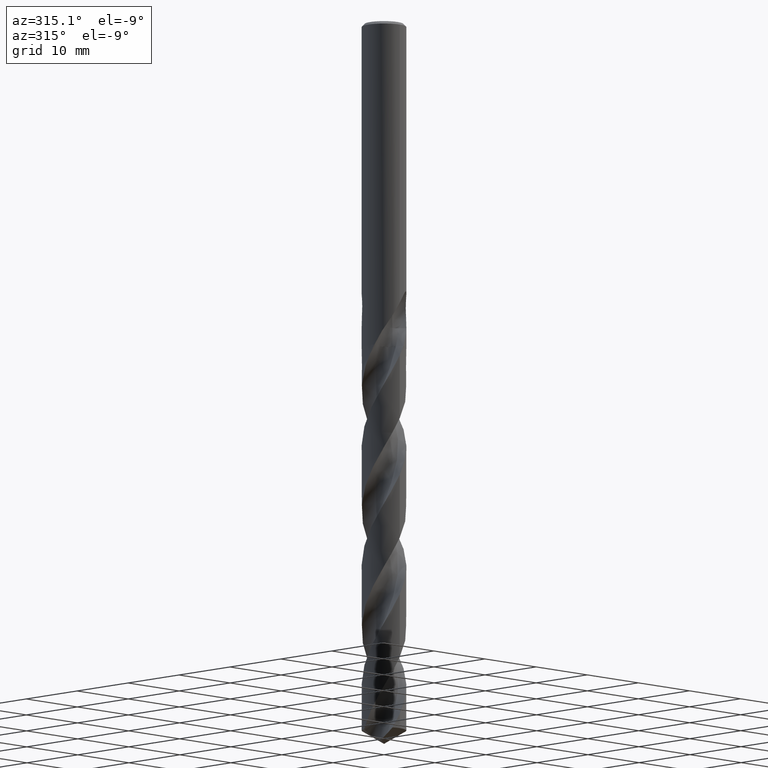
[diagram: clean part render]
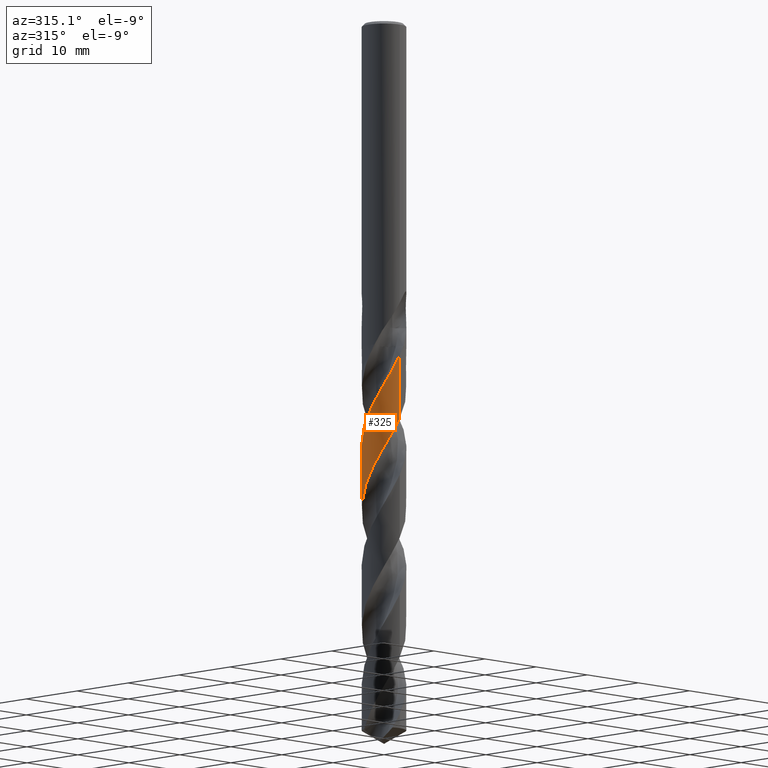
[diagram: same view with one face highlighted and labeled with its STEP entity id]
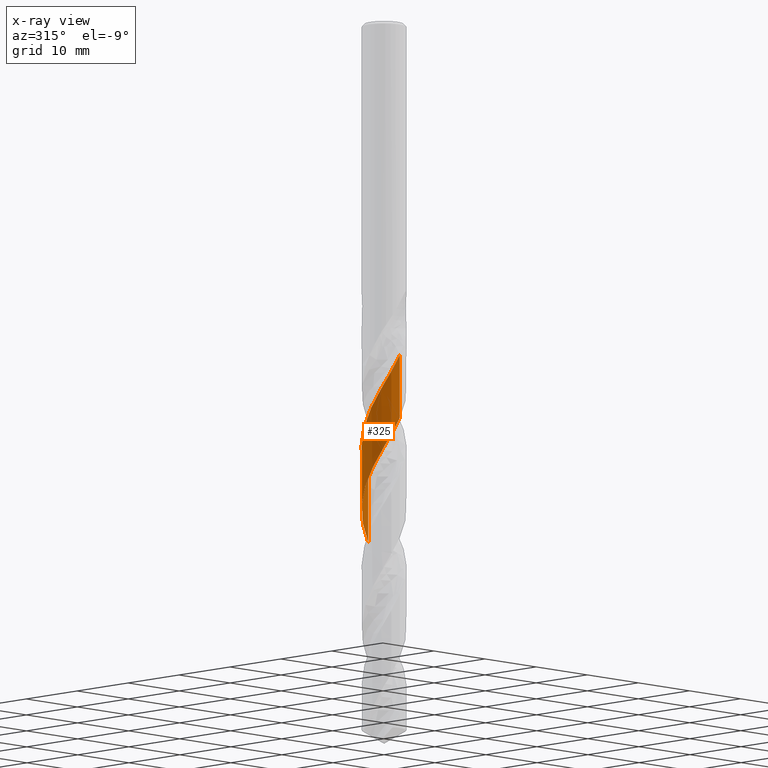
[diagram: x-ray of the same camera — body ghosted, the highlighted face saturated]
A machine part, auxiliary view. The second image highlights one B-rep face of the part: STEP entity #325.
The next image is the same camera in x-ray: the body ghosted, the highlighted face saturated — about 0% of this face is hidden behind the body in this view.
In plain terms, the highlighted conical surface has half-angle 0 deg.
Its self-contained STEP definition (entity closure, byte-faithful):
#301=VERTEX_POINT('',#840);
#325=ADVANCED_FACE('',(#865),#866,.T.);
#343=EDGE_CURVE('',#395,#301,#887,.T.);
#395=VERTEX_POINT('',#941);
#503=VERTEX_POINT('',#1060);
#595=EDGE_CURVE('',#641,#503,#1160,.T.);
#641=VERTEX_POINT('',#1208);
#697=EDGE_CURVE('',#301,#641,#1269,.T.);
#811=EDGE_CURVE('',#503,#395,#1398,.T.);
#840=CARTESIAN_POINT('',(2.18823352453006E-015,-3.09990260791539,-46.8014241515095));
#865=FACE_OUTER_BOUND('',#1629,.T.);
#866=CONICAL_SURFACE('',#1630,3.09995,1.86090369818389E-006);
#887=LINE('',#1656,#1657);
#941=CARTESIAN_POINT('',(-7.96010246756979E-011,-3.09991904153534,-55.6324130801995));
#1060=CARTESIAN_POINT('',(1.20418015023498E-012,3.09995022492629,-72.3895354275451));
#1160=LINE('',#8150,#8151);
#1208=CARTESIAN_POINT('',(1.45471474958679E-013,3.09993379112987,-63.5584516698443));
#1269=B_SPLINE_CURVE_WITH_KNOTS('',3,(#10013,#10014,#10015,#10016,#10017,#10018,#10019,#10020,#10021,#10022,#10023,#10024,#10025,#10026,#10027,#10028,#10029,#10030,#10031,#10032,#10033,#10034,#10035,#10036,#10037,#10038,#10039,#10040,#10041,#10042,#10043,#10044,#10045,#10046,#10047,#10048,#10049,#10050,#10051,#10052,#10053,#10054,#10055,#10056,#10057,#10058,#10059,#10060,#10061,#10062,#10063,#10064,#10065,#10066,#10067,#10068,#10069,#10070,#10071,#10072,#10073,#10074,#10075,#10076,#10077,#10078,#10079,#10080,#10081,#10082,#10083,#10084,#10085,#10086,#10087,#10088,#10089,#10090,#10091,#10092,#10093,#10094,#10095,#10096,#10097,#10098,#10099,#10100,#10101,#10102,#10103,#10104,#10105,#10106,#10107,#10108,#10109,#10110,#10111,#10112,#10113,#10114,#10115,#10116,#10117,#10118,#10119,#10120,#10121,#10122,#10123,#10124,#10125,#10126,#10127,#10128,#10129,#10130,#10131,#10132,#10133,#10134),.UNSPECIFIED.,.F.,.F.,(4,2,2,2,2,2,2,2,2,2,2,2,2,2,2,2,2,2,2,2,2,2,2,2,2,2,2,2,2,2,2,2,2,2,2,2,2,2,2,2,2,2,2,2,2,2,2,2,2,2,2,2,2,2,2,2,2,2,2,2,4),(0.0,0.0605061321969254,0.658632603859869,1.7165403872046,3.02314003703739,3.33391074773909,4.35970024156893,4.95810904975374,5.58117729165477,6.64409013231934,7.8317785002371,9.29642296022307,9.87114301084776,11.1829410812051,12.4301598485934,13.6072247723315,13.8728121102026,14.8724325155231,15.4707879178772,16.1576805124347,17.3988135674862,18.2965223523508,19.5929494553402,20.3723489543157,21.608564133085,22.5159617127965,23.8125082345733,24.5908156702885,25.8330865373858,26.7262648961595,28.0191934538834,28.8034085439717,30.0389742709571,30.9462933393461,32.2442978634304,33.0188972814915,34.2598055234934,35.1546499330183,36.4479539662881,37.2299686728054,38.4634862518858,39.3744175677104,40.6764874240887,41.923207434947,43.0978955312202,43.3658312077751,45.3250389365652,45.3858932919079,47.1858128806847,47.7892769196204,49.0708937670906,49.8729192477484,51.1205937560502,51.9950736679236,53.271196902422,54.0811712255781,55.3258636215247,56.165226719664,57.2579416131882,58.4720274865467,62.1508668872451),.UNSPECIFIED.);
#1398=B_SPLINE_CURVE_WITH_KNOTS('',3,(#14642,#14643,#14644,#14645,#14646,#14647,#14648,#14649,#14650,#14651,#14652,#14653,#14654,#14655,#14656,#14657,#14658,#14659,#14660,#14661,#14662,#14663,#14664,#14665,#14666,#14667,#14668,#14669,#14670,#14671,#14672,#14673,#14674,#14675,#14676,#14677,#14678,#14679,#14680,#14681,#14682,#14683,#14684,#14685,#14686,#14687,#14688,#14689,#14690,#14691,#14692,#14693,#14694,#14695,#14696,#14697,#14698,#14699,#14700,#14701,#14702,#14703,#14704,#14705,#14706,#14707,#14708,#14709,#14710,#14711,#14712,#14713,#14714,#14715,#14716,#14717,#14718,#14719,#14720,#14721,#14722,#14723,#14724,#14725,#14726,#14727,#14728,#14729,#14730,#14731,#14732,#14733,#14734,#14735,#14736,#14737,#14738,#14739,#14740,#14741,#14742,#14743,#14744,#14745,#14746,#14747,#14748,#14749,#14750,#14751,#14752,#14753,#14754,#14755,#14756,#14757,#14758,#14759,#14760,#14761,#14762,#14763,#14764,#14765,#14766,#14767,#14768,#14769,#14770,#14771,#14772,#14773,#14774,#14775,#14776,#14777,#14778,#14779,#14780,#14781,#14782,#14783,#14784,#14785,#14786,#14787,#14788,#14789,#14790,#14791),.UNSPECIFIED.,.F.,.F.,(4,2,2,2,2,2,2,2,2,2,2,2,2,2,2,2,2,2,2,2,2,2,2,2,2,2,2,2,2,2,2,2,2,2,2,2,2,2,2,2,2,2,2,2,2,2,2,2,2,2,2,2,2,2,2,2,2,2,2,2,2,2,2,2,2,2,2,2,2,2,2,2,2,2,4),(0.0,1.0922048420687,1.6194048425752,2.65957104861993,3.84132351191628,4.34111644142919,5.5130230471828,7.2743113501171,7.84533558982667,8.63370818338539,9.75774265055029,10.2861729084461,10.7367413042651,11.8650796348125,12.3938326250602,12.8501452237634,14.032081949263,15.0868207315678,16.0089182991928,16.5390228800443,17.0448249982817,18.2331339865714,18.7637505750359,19.2203083986212,20.4112913291607,21.4694950024797,22.4816383811072,23.0131621823809,23.4724121584219,24.6680985959759,25.7282069568439,27.3545173248275,27.7139067470945,28.8318151574949,29.3647308724342,29.8506052302851,30.9802468992663,32.8076650691336,33.411339997975,34.5069264346493,35.4832529909287,36.5158522128277,37.5164005776861,38.5036718222717,39.4588716145657,39.9938164637394,41.0221530507828,42.221372738666,42.6925737145222,43.8179663215687,45.6352276678494,46.2403427450696,46.5056221584555,46.9766632071452,48.1467260662854,48.6818750376911,49.1375465873971,50.3090174850304,50.8443492436583,51.2939099616482,52.4635356783715,53.5317027262605,55.3046462967829,55.448908676965,56.5052962196163,57.0365801473373,57.7625571680423,58.9970308162039,59.9697702207627,61.4331979403757,62.1631445066788,62.5331890570111,62.7181939595423,62.8105715569131,62.9029504676086),.UNSPECIFIED.);
#1629=EDGE_LOOP('',(#14809,#14810,#14811,#14812));
#1630=AXIS2_PLACEMENT_3D('',#14813,#14814,#14815);
#1656=CARTESIAN_POINT('',(3.79669964074359E-016,-3.09995,-72.2686660405073));
#1657=VECTOR('',#14842,1.0);
#8150=CARTESIAN_POINT('',(-3.79573729231977E-016,3.09995,-72.2686660405073));
#8151=VECTOR('',#15104,1.0);
#10013=CARTESIAN_POINT('',(0.802706618069439,-2.9941680224864,-45.4044701045762));
#10014=CARTESIAN_POINT('',(0.792909520453723,-2.99679456034161,-45.421902691011));
#10015=CARTESIAN_POINT('',(0.783099011374947,-2.99937314933586,-45.4393320718103));
#10016=CARTESIAN_POINT('',(0.676175689368275,-3.02691646420781,-45.6290562275928));
#10017=CARTESIAN_POINT('',(0.57793949904489,-3.0471980752971,-45.8011514537634));
#10018=CARTESIAN_POINT('',(0.303771447914196,-3.09007096804147,-46.2782543465361));
#10019=CARTESIAN_POINT('',(0.126709415442809,-3.1023683414083,-46.583251316383));
#10020=CARTESIAN_POINT('',(-0.268985921023238,-3.09594435501944,-47.2645897663847));
#10021=CARTESIAN_POINT('',(-0.486710053603061,-3.06926657716093,-47.6392491324));
#10022=CARTESIAN_POINT('',(-0.750571086390222,-3.00811615259711,-48.1052013027193));
#10023=CARTESIAN_POINT('',(-0.800952270326996,-2.99509492309308,-48.1947104047662));
#10024=CARTESIAN_POINT('',(-1.0160768789986,-2.93368125412375,-48.5798511920211));
#10025=CARTESIAN_POINT('',(-1.17701618837968,-2.87290017168184,-48.8752479096359));
#10026=CARTESIAN_POINT('',(-1.42258787742173,-2.75603144152385,-49.3432554249145));
#10027=CARTESIAN_POINT('',(-1.51095120211615,-2.70859861728372,-49.515535384419));
#10028=CARTESIAN_POINT('',(-1.68636349896412,-2.60317263720546,-49.86742353216));
#10029=CARTESIAN_POINT('',(-1.77303098889335,-2.54493201601418,-50.0466849732458));
#10030=CARTESIAN_POINT('',(-1.99910386573655,-2.37585739196761,-50.5325469616555));
#10031=CARTESIAN_POINT('',(-2.1322127734857,-2.25716793746081,-50.8385699599579));
#10032=CARTESIAN_POINT('',(-2.39095196290991,-1.98302115471525,-51.4871177252392));
#10033=CARTESIAN_POINT('',(-2.5132134340063,-1.82558173609614,-51.8281248949603));
#10034=CARTESIAN_POINT('',(-2.75064843098373,-1.45035209553488,-52.5925953000578));
#10035=CARTESIAN_POINT('',(-2.85677774713596,-1.22821948739715,-53.0133582624724));
#10036=CARTESIAN_POINT('',(-2.96655477813452,-0.904600419592269,-53.6009869125108));
#10037=CARTESIAN_POINT('',(-2.99321160421334,-0.812047638654106,-53.7664572075522));
#10038=CARTESIAN_POINT('',(-3.06642100489456,-0.504767879138879,-54.3102242219574));
#10039=CARTESIAN_POINT('',(-3.09449434055908,-0.286202963346523,-54.6875151816172));
#10040=CARTESIAN_POINT('',(-3.10368573663336,0.142514049968889,-55.4249712822134));
#10041=CARTESIAN_POINT('',(-3.08702075813328,0.351303960765912,-55.7835343518442));
#10042=CARTESIAN_POINT('',(-3.01411875073885,0.750626177975253,-56.4823587997979));
#10043=CARTESIAN_POINT('',(-2.96029868778312,0.940772443335752,-56.8207194335808));
#10044=CARTESIAN_POINT('',(-2.8725930035631,1.16606471937736,-57.2364456956917));
#10045=CARTESIAN_POINT('',(-2.85555979682576,1.20717655527374,-57.3129494120057));
#10046=CARTESIAN_POINT('',(-2.77023731889463,1.4011957375139,-57.6776322351473));
#10047=CARTESIAN_POINT('',(-2.69051355428729,1.5487737257474,-57.9656452422487));
#10048=CARTESIAN_POINT('',(-2.54465478506669,1.77321980091318,-58.4262983142148));
#10049=CARTESIAN_POINT('',(-2.48598022841557,1.85458663363121,-58.5986495945696));
#10050=CARTESIAN_POINT('',(-2.35166113466392,2.02298785662268,-58.9690818776032));
#10051=CARTESIAN_POINT('',(-2.27494603465865,2.10888490101333,-59.1667754842804));
#10052=CARTESIAN_POINT('',(-2.04677767549403,2.33740454575908,-59.7226412759797));
#10053=CARTESIAN_POINT('',(-1.8854187281851,2.46941608243643,-60.079857848457));
#10054=CARTESIAN_POINT('',(-1.58657459773764,2.66739100156632,-60.6964097462435));
#10055=CARTESIAN_POINT('',(-1.45530580677971,2.7412142467869,-60.9545875970529));
#10056=CARTESIAN_POINT('',(-1.12272199212348,2.89762301164829,-61.5872484115163));
#10057=CARTESIAN_POINT('',(-0.916962548731166,2.96917137214226,-61.960289194347));
#10058=CARTESIAN_POINT('',(-0.57811978329826,3.04834792281967,-62.5587201875109));
#10059=CARTESIAN_POINT('',(-0.449191210543223,3.06999296759636,-62.7829965953581));
#10060=CARTESIAN_POINT('',(-0.113314106552172,3.10477668279239,-63.3642362768584));
#10061=CARTESIAN_POINT('',(0.0943800878333873,3.1054194745871,-63.7201205749364));
#10062=CARTESIAN_POINT('',(0.452034364502996,3.07057027835651,-64.338179115873));
#10063=CARTESIAN_POINT('',(0.602085879457786,3.04470120141104,-64.5991870930719));
#10064=CARTESIAN_POINT('',(0.960373620781795,2.95541477638013,-65.2348132436247));
#10065=CARTESIAN_POINT('',(1.16513134751314,2.88085718622608,-65.6079679552318));
#10066=CARTESIAN_POINT('',(1.47771897161267,2.72818538091422,-66.2062476961182));
#10067=CARTESIAN_POINT('',(1.59119893848583,2.66359095599177,-66.4302603457129));
#10068=CARTESIAN_POINT('',(1.87430335238185,2.47789150304913,-67.0130574617709));
#10069=CARTESIAN_POINT('',(2.03648032040109,2.34643739359689,-67.3707497621622));
#10070=CARTESIAN_POINT('',(2.29055306440703,2.09414324828599,-67.9865844351293));
#10071=CARTESIAN_POINT('',(2.38899888912491,1.98109329826498,-68.2435723674566));
#10072=CARTESIAN_POINT('',(2.60897387502583,1.68814974881637,-68.874185246099));
#10073=CARTESIAN_POINT('',(2.72060400900718,1.50165989469704,-69.246384128573));
#10074=CARTESIAN_POINT('',(2.86724554910547,1.18569006430022,-69.8454499205075));
#10075=CARTESIAN_POINT('',(2.91494208766303,1.06303921639027,-70.0712029958048));
#10076=CARTESIAN_POINT('',(3.01734741004979,0.740384128244289,-70.6538919857419));
#10077=CARTESIAN_POINT('',(3.0600784288145,0.537153065786269,-71.009741010714));
#10078=CARTESIAN_POINT('',(3.09846705822712,0.179829589564659,-71.6278526942342));
#10079=CARTESIAN_POINT('',(3.1035545895898,0.0275973261997346,-71.8889492724957));
#10080=CARTESIAN_POINT('',(3.08872767510185,-0.341739853653676,-72.525243857919));
#10081=CARTESIAN_POINT('',(3.05713603780831,-0.557691441190577,-72.8989723691433));
#10082=CARTESIAN_POINT('',(2.97093886695536,-0.894487491844896,-73.4968567408456));
#10083=CARTESIAN_POINT('',(2.93085514809578,-1.0181629976077,-73.7198998394055));
#10084=CARTESIAN_POINT('',(2.80672177449252,-1.33240331074456,-74.301481134881));
#10085=CARTESIAN_POINT('',(2.71098609167237,-1.5177618674533,-74.6589345456716));
#10086=CARTESIAN_POINT('',(2.51542266805074,-1.81793984005035,-75.275118488354));
#10087=CARTESIAN_POINT('',(2.42448744675166,-1.93754846266201,-75.5326929972459));
#10088=CARTESIAN_POINT('',(2.18188825019269,-2.21271544962992,-76.1641628878612));
#10089=CARTESIAN_POINT('',(2.02177273293322,-2.3599270260923,-76.5366255747079));
#10090=CARTESIAN_POINT('',(1.74218417569892,-2.56744118998588,-77.1354189620857));
#10091=CARTESIAN_POINT('',(1.63201194865457,-2.63884042337757,-77.3606356482586));
#10092=CARTESIAN_POINT('',(1.33733513844406,-2.80429447083087,-77.9423462340181));
#10093=CARTESIAN_POINT('',(1.14724432770821,-2.88728629782401,-78.2977598612261));
#10094=CARTESIAN_POINT('',(0.80477035592188,-2.99757738396129,-78.916586509143));
#10095=CARTESIAN_POINT('',(0.656078310828243,-3.03358904025222,-79.1788305873424));
#10096=CARTESIAN_POINT('',(0.289963188172171,-3.09408594768255,-79.8176122087636));
#10097=CARTESIAN_POINT('',(0.0713025899163975,-3.10683751749211,-80.1926595223171));
#10098=CARTESIAN_POINT('',(-0.355927250627475,-3.08656362784496,-80.9282200000877));
#10099=CARTESIAN_POINT('',(-0.563286566564804,-3.05552024761683,-81.287131601828));
#10100=CARTESIAN_POINT('',(-0.956721739822042,-2.95521290009344,-81.9861255435912));
#10101=CARTESIAN_POINT('',(-1.14259564344672,-2.8884503785457,-82.3242948934472));
#10102=CARTESIAN_POINT('',(-1.36162219727976,-2.78528593702649,-82.7406062575868));
#10103=CARTESIAN_POINT('',(-1.40186943720879,-2.7652476167034,-82.8178952085227));
#10104=CARTESIAN_POINT('',(-1.73264852971227,-2.59148343935004,-83.4607549811057));
#10105=CARTESIAN_POINT('',(-1.99759168903335,-2.39324026041924,-84.0233944688468));
#10106=CARTESIAN_POINT('',(-2.23352755483524,-2.14971889947374,-84.6064694086807));
#10107=CARTESIAN_POINT('',(-2.24059788746154,-2.14234870712384,-84.6240328295401));
#10108=CARTESIAN_POINT('',(-2.45568988915751,-1.91590491858075,-85.1612088684049));
#10109=CARTESIAN_POINT('',(-2.63068295686265,-1.66753849699068,-85.6791386599005));
#10110=CARTESIAN_POINT('',(-2.81264054492395,-1.30735320824649,-86.3730429939899));
#10111=CARTESIAN_POINT('',(-2.85384761856297,-1.21476751279466,-86.5471043082529));
#10112=CARTESIAN_POINT('',(-2.96815588466918,-0.919864300936374,-87.0915451228486));
#10113=CARTESIAN_POINT('',(-3.02482933952894,-0.711743664202919,-87.4609619118081));
#10114=CARTESIAN_POINT('',(-3.0811869980366,-0.366460328453666,-88.0626389265387));
#10115=CARTESIAN_POINT('',(-3.09418966244354,-0.232331558464633,-88.2937855903998));
#10116=CARTESIAN_POINT('',(-3.10504353912743,0.111446157499274,-88.8858280342793));
#10117=CARTESIAN_POINT('',(-3.09043537113791,0.320917196569171,-89.2455739044204));
#10118=CARTESIAN_POINT('',(-3.02981483499607,0.672069233093469,-89.8584466576975));
#10119=CARTESIAN_POINT('',(-2.99459482343577,0.814760527973566,-90.1104303375009));
#10120=CARTESIAN_POINT('',(-2.88348195572437,1.15814453173103,-90.7316873394683));
#10121=CARTESIAN_POINT('',(-2.79658539432644,1.35460247980837,-91.0996077560086));
#10122=CARTESIAN_POINT('',(-2.6224792131653,1.65862011298079,-91.7021205369557));
#10123=CARTESIAN_POINT('',(-2.54720770977904,1.77204158533683,-91.9355967300504));
#10124=CARTESIAN_POINT('',(-2.33805365980561,2.04623372802725,-92.5291998688739));
#10125=CARTESIAN_POINT('',(-2.19483724994531,2.19916297093864,-92.8881707201223));
#10126=CARTESIAN_POINT('',(-1.93102006641564,2.42919106971366,-93.4901731935838));
#10127=CARTESIAN_POINT('',(-1.81860580388413,2.51445076371887,-93.7321125416953));
#10128=CARTESIAN_POINT('',(-1.54745534779306,2.69239131189809,-94.2903535373807));
#10129=CARTESIAN_POINT('',(-1.38542808400325,2.77924742012507,-94.6057158058963));
#10130=CARTESIAN_POINT('',(-1.02908897189691,2.93129801259645,-95.272154169597));
#10131=CARTESIAN_POINT('',(-0.834175602931912,2.99259640738976,-95.6216093125893));
#10132=CARTESIAN_POINT('',(-0.0303490365188072,3.16074421050158,-97.0355699330686));
#10133=CARTESIAN_POINT('',(0.59848730234502,3.10381413622902,-98.0747498773825));
#10134=CARTESIAN_POINT('',(1.17068018211897,2.87045430397244,-99.1373320810146));
#14642=CARTESIAN_POINT('',(-2.95963420843977,0.922261000060784,-99.1373320810146));
#14643=CARTESIAN_POINT('',(-3.01374764200359,0.748603230266725,-98.8219586066983));
#14644=CARTESIAN_POINT('',(-3.05264100032437,0.569994763401176,-98.5086065610218));
#14645=CARTESIAN_POINT('',(-3.08664666044097,0.300681387906761,-98.0421892665719));
#14646=CARTESIAN_POINT('',(-3.09395952224211,0.212601110632909,-97.8905541682616));
#14647=CARTESIAN_POINT('',(-3.10449129045387,-0.0497414893016865,-97.4390305880019));
#14648=CARTESIAN_POINT('',(-3.09679872947348,-0.224081637278233,-97.1383975689956));
#14649=CARTESIAN_POINT('',(-3.04910249867222,-0.593447749087171,-96.4983277838922));
#14650=CARTESIAN_POINT('',(-3.00498140560717,-0.786869004119303,-96.1600556702684));
#14651=CARTESIAN_POINT('',(-2.91651055593255,-1.0540027283836,-95.6754559676567));
#14652=CARTESIAN_POINT('',(-2.88705562097779,-1.1321755377664,-95.5310717667172));
#14653=CARTESIAN_POINT('',(-2.77828414215959,-1.38899925545094,-95.0498441109477));
#14654=CARTESIAN_POINT('',(-2.68505826608181,-1.56169611285668,-94.714792739043));
#14655=CARTESIAN_POINT('',(-2.41188240618916,-1.96969257361619,-93.8716329325328));
#14656=CARTESIAN_POINT('',(-2.21380424272034,-2.18996207957807,-93.3643306609727));
#14657=CARTESIAN_POINT('',(-1.91418122868502,-2.44028136816774,-92.6940030804388));
#14658=CARTESIAN_POINT('',(-1.83806194445275,-2.49811376490729,-92.530123873838));
#14659=CARTESIAN_POINT('',(-1.6508763930912,-2.62714883046534,-92.1393040840101));
#14660=CARTESIAN_POINT('',(-1.53781252008963,-2.69486638611446,-91.9119174800371));
#14661=CARTESIAN_POINT('',(-1.25461536991237,-2.84093783444962,-91.362514158672));
#14662=CARTESIAN_POINT('',(-1.08051779649778,-2.91164193765596,-91.0416058664094));
#14663=CARTESIAN_POINT('',(-0.81633511497527,-2.99187122014596,-90.5674454187786));
#14664=CARTESIAN_POINT('',(-0.730910279448212,-3.01387174165993,-90.4159647215018));
#14665=CARTESIAN_POINT('',(-0.571346076820265,-3.04780193244407,-90.1347922806087));
#14666=CARTESIAN_POINT('',(-0.497473802832477,-3.06072611174115,-90.0051264054767));
#14667=CARTESIAN_POINT('',(-0.2370015624556,-3.09661529698837,-89.5517382838457));
#14668=CARTESIAN_POINT('',(-0.0486700237685166,-3.10532225503961,-89.229757242166));
#14669=CARTESIAN_POINT('',(0.227793579901571,-3.09286082099472,-88.7545050317717));
#14670=CARTESIAN_POINT('',(0.315682730775019,-3.08512230534111,-88.6030082049011));
#14671=CARTESIAN_POINT('',(0.478369085132137,-3.06379098227309,-88.3202397076574));
#14672=CARTESIAN_POINT('',(0.553228513359416,-3.05116019975777,-88.1889830937779));
#14673=CARTESIAN_POINT('',(0.820216768669439,-2.99596425391844,-87.718852465872));
#14674=CARTESIAN_POINT('',(1.00885109295164,-2.93785394559437,-87.3819841108322));
#14675=CARTESIAN_POINT('',(1.35345249529705,-2.79445928748178,-86.7409083563174));
#14676=CARTESIAN_POINT('',(1.50968358857292,-2.71320701528967,-86.4375843833731));
#14677=CARTESIAN_POINT('',(1.78754083197407,-2.53733569848172,-85.8710951355948));
#14678=CARTESIAN_POINT('',(1.91102619946296,-2.44570301214456,-85.6079779826111));
#14679=CARTESIAN_POINT('',(2.09421094024969,-2.28734185846626,-85.1922267846794));
#14680=CARTESIAN_POINT('',(2.15850582139968,-2.22676220215893,-85.0406240126228));
#14681=CARTESIAN_POINT('',(2.27880516585906,-2.10332210871496,-84.7438408206735));
#14682=CARTESIAN_POINT('',(2.33497173248937,-2.04077900159383,-84.5985805879959));
#14683=CARTESIAN_POINT('',(2.51411235093052,-1.82425902449706,-84.1137545843291));
#14684=CARTESIAN_POINT('',(2.62518112388646,-1.66052733571957,-83.776011175025));
#14685=CARTESIAN_POINT('',(2.76239393523909,-1.40953674092841,-83.2847680015205));
#14686=CARTESIAN_POINT('',(2.80136449504825,-1.33038643081922,-83.1332745222239));
#14687=CARTESIAN_POINT('',(2.86741899515558,-1.18045002695736,-82.8509010770563));
#14688=CARTESIAN_POINT('',(2.89537387330114,-1.11011412231593,-82.7200390817246));
#14689=CARTESIAN_POINT('',(2.98692823831596,-0.852686770614563,-82.2488939814376));
#14690=CARTESIAN_POINT('',(3.03526001663705,-0.660469976370569,-81.9106514128554));
#14691=CARTESIAN_POINT('',(3.09132063288269,-0.290680495899829,-81.2682388777702));
#14692=CARTESIAN_POINT('',(3.10279558778358,-0.115000820862667,-80.9649668215619));
#14693=CARTESIAN_POINT('',(3.09610769484292,0.228156019979442,-80.3737394064091));
#14694=CARTESIAN_POINT('',(3.07922118951054,0.395541988619369,-80.0861542233259));
#14695=CARTESIAN_POINT('',(3.03281486931748,0.647770888770603,-79.6457321866094));
#14696=CARTESIAN_POINT('',(3.01315325879984,0.733783313834133,-79.4942329247425));
#14697=CARTESIAN_POINT('',(2.96979295326883,0.892127196032383,-79.2113042124892));
#14698=CARTESIAN_POINT('',(2.94703295445208,0.964647505015168,-79.0798880486799));
#14699=CARTESIAN_POINT('',(2.85545156657366,1.22283922964805,-78.6074583487952));
#14700=CARTESIAN_POINT('',(2.77149201031693,1.40284826371385,-78.2684875456851));
#14701=CARTESIAN_POINT('',(2.58138717771415,1.72544407000765,-77.6253252384592));
#14702=CARTESIAN_POINT('',(2.47941609485503,1.86896152434184,-77.322043303968));
#14703=CARTESIAN_POINT('',(2.19220332275536,2.20825884201436,-76.5562470496734));
#14704=CARTESIAN_POINT('',(1.99246042843864,2.38999633895539,-76.0983963682959));
#14705=CARTESIAN_POINT('',(1.72317090887932,2.57758371176827,-75.5323710430476));
#14706=CARTESIAN_POINT('',(1.67353417759716,2.61008388333278,-75.4297831999857));
#14707=CARTESIAN_POINT('',(1.46551019993558,2.73790755122669,-75.0086375630619));
#14708=CARTESIAN_POINT('',(1.29953001098903,2.82051335069542,-74.6918751360779));
#14709=CARTESIAN_POINT('',(1.04454132845371,2.92000913195485,-74.2218939235827));
#14710=CARTESIAN_POINT('',(0.960987134348311,2.94855647922386,-74.0703313167256));
#14711=CARTESIAN_POINT('',(0.799339614339643,2.99620144227721,-73.7800564007894));
#14712=CARTESIAN_POINT('',(0.721519361830801,3.01588248489193,-73.6413069156128));
#14713=CARTESIAN_POINT('',(0.460668293544304,3.07119693365562,-73.181372944823));
#14714=CARTESIAN_POINT('',(0.274888260739428,3.09339917757964,-72.8617479975437));
#14715=CARTESIAN_POINT('',(-0.214537450030101,3.10728420009674,-72.02100095534));
#14716=CARTESIAN_POINT('',(-0.516536653165383,3.07155112889921,-71.5004940098957));
#14717=CARTESIAN_POINT('',(-0.905136177471987,2.96654559734876,-70.8093803095225));
#14718=CARTESIAN_POINT('',(-1.00026091920561,2.93583349603364,-70.6380384915007));
#14719=CARTESIAN_POINT('',(-1.26323789943871,2.83667602209429,-70.1547974281302));
#14720=CARTESIAN_POINT('',(-1.42670810512725,2.7580767054906,-69.8419617473103));
#14721=CARTESIAN_POINT('',(-1.72131344768976,2.58317629686985,-69.2527435325842));
#14722=CARTESIAN_POINT('',(-1.85350652217681,2.49003002624913,-68.9763570890569));
#14723=CARTESIAN_POINT('',(-2.10939456042138,2.27799855516075,-68.405193911827));
#14724=CARTESIAN_POINT('',(-2.23152501736752,2.15847832096747,-68.1104454478909));
#14725=CARTESIAN_POINT('',(-2.45139132889011,1.90463345356437,-67.5324217904138));
#14726=CARTESIAN_POINT('',(-2.5494949809814,1.7711842777039,-67.2493421525548));
#14727=CARTESIAN_POINT('',(-2.72241825819833,1.49155245068431,-66.6845506035399));
#14728=CARTESIAN_POINT('',(-2.79707196963024,1.34628690899844,-66.403114419355));
#14729=CARTESIAN_POINT('',(-2.92060822821107,1.05092765862841,-65.851412932415));
#14730=CARTESIAN_POINT('',(-2.97028015185774,0.901090930836754,-65.5813287214236));
#14731=CARTESIAN_POINT('',(-3.02969064172563,0.662115751577804,-65.1585417658394));
#14732=CARTESIAN_POINT('',(-3.04731706295519,0.575541106548654,-65.0069286534263));
#14733=CARTESIAN_POINT('',(-3.08793581403016,0.320956129890683,-64.5630835798306));
#14734=CARTESIAN_POINT('',(-3.1008916151098,0.151452178225664,-64.2699152582883));
#14735=CARTESIAN_POINT('',(-3.09869951680442,-0.216592429530613,-63.6373006423618));
#14736=CARTESIAN_POINT('',(-3.07852467462133,-0.413981839766628,-63.2989516936045));
#14737=CARTESIAN_POINT('',(-3.02450513531148,-0.684096225641828,-62.8243149568526));
#14738=CARTESIAN_POINT('',(-3.00643506343742,-0.759570853322898,-62.6901396701816));
#14739=CARTESIAN_POINT('',(-2.93567847914861,-1.01277170213743,-62.2367191907583));
#14740=CARTESIAN_POINT('',(-2.86983376605751,-1.18666598130023,-61.919062649932));
#14741=CARTESIAN_POINT('',(-2.65755854443765,-1.62389556726649,-61.0844541712335));
#14742=CARTESIAN_POINT('',(-2.48799639411816,-1.87337357471327,-60.5680711239476));
#14743=CARTESIAN_POINT('',(-2.21763397332459,-2.16832576186702,-59.8811194057127));
#14744=CARTESIAN_POINT('',(-2.14660815965226,-2.23865746121404,-59.7097894288431));
#14745=CARTESIAN_POINT('',(-2.03980239382228,-2.33466578768224,-59.4628728715631));
#14746=CARTESIAN_POINT('',(-2.00666029393877,-2.36321085545635,-59.3876235881509));
#14747=CARTESIAN_POINT('',(-1.91310273580231,-2.4404093869191,-59.1786271805816));
#14748=CARTESIAN_POINT('',(-1.85151576869042,-2.48745464907562,-59.0446414618842));
#14749=CARTESIAN_POINT('',(-1.63100414638361,-2.64318038992773,-58.5790701696523));
#14750=CARTESIAN_POINT('',(-1.46357964206986,-2.73947527049429,-58.2493038896406));
#14751=CARTESIAN_POINT('',(-1.20769113145638,-2.85636122458246,-57.7661606327384));
#14752=CARTESIAN_POINT('',(-1.12596350426238,-2.88954661173044,-57.6146824877403));
#14753=CARTESIAN_POINT('',(-0.972448576447727,-2.944398450225,-57.3336918646079));
#14754=CARTESIAN_POINT('',(-0.901061107023078,-2.96702184428781,-57.2042058487271));
#14755=CARTESIAN_POINT('',(-0.643259799173305,-3.03855716169568,-56.7428453037302));
#14756=CARTESIAN_POINT('',(-0.453023021038664,-3.07271659438369,-56.4128645072825));
#14757=CARTESIAN_POINT('',(-0.172592403525938,-3.09636958975134,-55.9295114127186));
#14758=CARTESIAN_POINT('',(-0.0844821783753404,-3.10001781895196,-55.7780552199701));
#14759=CARTESIAN_POINT('',(0.0774598388281946,-3.09983234997721,-55.498877478191));
#14760=CARTESIAN_POINT('',(0.15125381298591,-3.09710829155701,-55.3711954064809));
#14761=CARTESIAN_POINT('',(0.416747916597759,-3.07778906396392,-54.9122083818364));
#14762=CARTESIAN_POINT('',(0.607049181438554,-3.04600590683962,-54.5828231950186));
#14763=CARTESIAN_POINT('',(0.963650866381099,-2.95158613359297,-53.9492367208987));
#14764=CARTESIAN_POINT('',(1.12949553914074,-2.8921469663449,-53.6458181321957));
#14765=CARTESIAN_POINT('',(1.5540059048122,-2.69803281396583,-52.8416041188075));
#14766=CARTESIAN_POINT('',(1.80027457306562,-2.54026572322091,-52.3468136958311));
#14767=CARTESIAN_POINT('',(2.03862291920134,-2.33538643685022,-51.8039914447887));
#14768=CARTESIAN_POINT('',(2.05636957062844,-2.31977568214285,-51.7631370019052));
#14769=CARTESIAN_POINT('',(2.20295642824302,-2.18781776653251,-51.4226231410748));
#14770=CARTESIAN_POINT('',(2.32219386148704,-2.06087726715623,-51.1246243711922));
#14771=CARTESIAN_POINT('',(2.48473364863699,-1.85559073094271,-50.6750549138319));
#14772=CARTESIAN_POINT('',(2.53614695826642,-1.78467143323362,-50.5247836297193));
#14773=CARTESIAN_POINT('',(2.65047109391434,-1.61205779089539,-50.1685954637544));
#14774=CARTESIAN_POINT('',(2.71056096015043,-1.5088086547105,-49.9622274148954));
#14775=CARTESIAN_POINT('',(2.85620901307036,-1.22171549132567,-49.4072088466684));
#14776=CARTESIAN_POINT('',(2.93008320430962,-1.03215843379581,-49.0603053693833));
#14777=CARTESIAN_POINT('',(3.02814532829217,-0.682205763716868,-48.4362088915284));
#14778=CARTESIAN_POINT('',(3.05927380533947,-0.525100824960079,-48.1604061628375));
#14779=CARTESIAN_POINT('',(3.10654705429293,-0.128173294038976,-47.4715946563538));
#14780=CARTESIAN_POINT('',(3.10713253024473,0.1125740074543,-47.0620405428271));
#14781=CARTESIAN_POINT('',(3.06642991074234,0.469805067611746,-46.4426871762484));
#14782=CARTESIAN_POINT('',(3.04608952356593,0.587354154085374,-46.2358519360353));
#14783=CARTESIAN_POINT('',(3.00524682917585,0.76258865919811,-45.9255514810972));
#14784=CARTESIAN_POINT('',(2.98975332471572,0.821253172686061,-45.8212442670443));
#14785=CARTESIAN_POINT('',(2.96387633380097,0.908704672721832,-45.6649045863134));
#14786=CARTESIAN_POINT('',(2.9548124435854,0.937760349408519,-45.6128180543528));
#14787=CARTESIAN_POINT('',(2.94056422086316,0.981170294854608,-45.5347537284274));
#14788=CARTESIAN_POINT('',(2.9357097428122,0.995601161689331,-45.5087615951569));
#14789=CARTESIAN_POINT('',(2.92578195266409,1.02440848279795,-45.4567876085916));
#14790=CARTESIAN_POINT('',(2.92071504191285,1.0387663901909,-45.4308455932107));
#14791=CARTESIAN_POINT('',(2.9155450477647,1.05307983610769,-45.404919886909));
#14809=ORIENTED_EDGE('',*,*,#595,.T.);
#14810=ORIENTED_EDGE('',*,*,#811,.T.);
#14811=ORIENTED_EDGE('',*,*,#343,.T.);
#14812=ORIENTED_EDGE('',*,*,#697,.T.);
#14813=CARTESIAN_POINT('',(0.0,0.0,-72.2686660405073));
#14814=DIRECTION('',(0.0,-0.0,-1.0));
#14815=DIRECTION('',(0.0,1.0,0.0));
#14842=DIRECTION('',(-2.27887449264623E-022,1.86090369818281E-006,0.999999999998269));
#15104=DIRECTION('',(-2.27887449264623E-022,1.86090369818281E-006,-0.999999999998269));